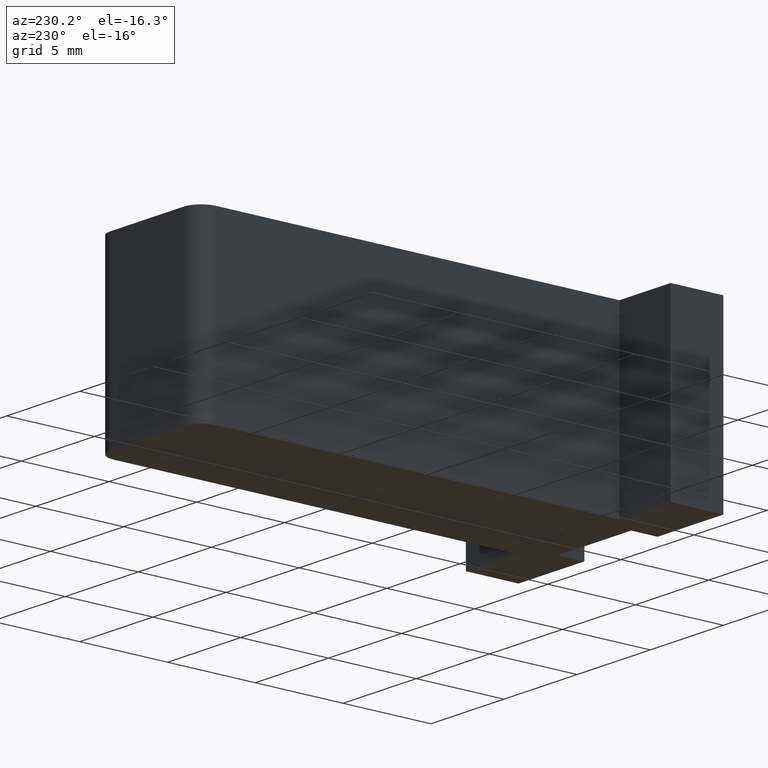
[diagram: clean part render]
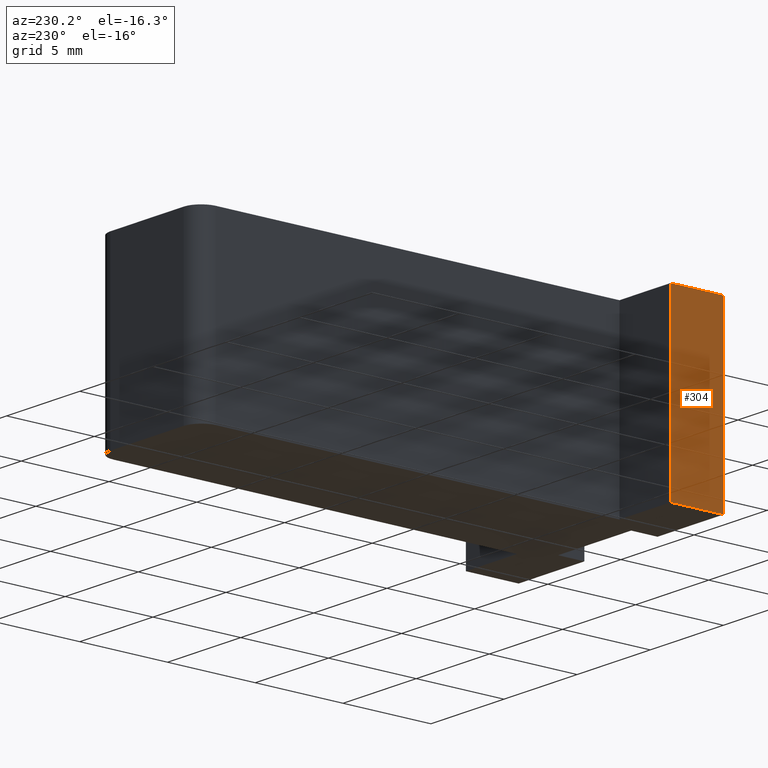
[diagram: same view with one face highlighted and labeled with its STEP entity id]
A machine part, auxiliary view. The second image highlights one B-rep face of the part: STEP entity #304.
In plain terms, the highlighted planar face has unit normal (-1, 0, 0).
Its self-contained STEP definition (entity closure, byte-faithful):
#24=FACE_OUTER_BOUND('',#40,.T.);
#40=EDGE_LOOP('',(#231,#232,#233,#234));
#61=LINE('',#454,#99);
#75=LINE('',#485,#113);
#76=LINE('',#488,#114);
#77=LINE('',#489,#115);
#99=VECTOR('',#368,10.);
#113=VECTOR('',#394,10.);
#114=VECTOR('',#397,10.);
#115=VECTOR('',#398,10.);
#137=VERTEX_POINT('',#451);
#138=VERTEX_POINT('',#453);
#149=VERTEX_POINT('',#483);
#150=VERTEX_POINT('',#487);
#165=EDGE_CURVE('',#138,#137,#61,.T.);
#181=EDGE_CURVE('',#149,#137,#75,.T.);
#182=EDGE_CURVE('',#149,#150,#76,.T.);
#183=EDGE_CURVE('',#150,#138,#77,.T.);
#231=ORIENTED_EDGE('',*,*,#182,.T.);
#232=ORIENTED_EDGE('',*,*,#183,.T.);
#233=ORIENTED_EDGE('',*,*,#165,.T.);
#234=ORIENTED_EDGE('',*,*,#181,.F.);
#290=PLANE('',#345);
#304=ADVANCED_FACE('',(#24),#290,.T.);
#345=AXIS2_PLACEMENT_3D('',#486,#395,#396);
#368=DIRECTION('',(0.,-1.,0.));
#394=DIRECTION('',(0.,0.,-1.));
#395=DIRECTION('center_axis',(-1.,0.,0.));
#396=DIRECTION('ref_axis',(0.,0.,1.));
#397=DIRECTION('',(0.,1.,0.));
#398=DIRECTION('',(0.,0.,-1.));
#451=CARTESIAN_POINT('',(-7.,8.22523574098181E-17,-5.));
#453=CARTESIAN_POINT('',(-7.,3.,-5.));
#454=CARTESIAN_POINT('',(-7.,8.22523574098181E-17,-5.));
#483=CARTESIAN_POINT('',(-7.,8.22523574098181E-17,5.));
#485=CARTESIAN_POINT('',(-7.,8.22523574098181E-17,0.));
#486=CARTESIAN_POINT('Origin',(-7.,8.22523574098181E-17,0.));
#487=CARTESIAN_POINT('',(-7.,3.,5.));
#488=CARTESIAN_POINT('',(-7.,8.22523574098181E-17,5.));
#489=CARTESIAN_POINT('',(-7.,3.,0.));